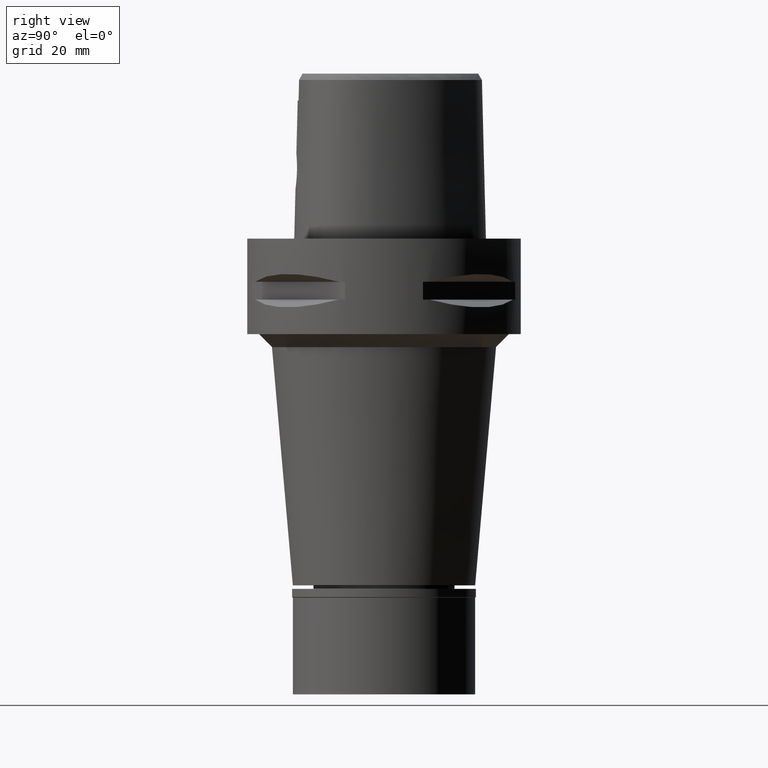
[diagram: clean part render]
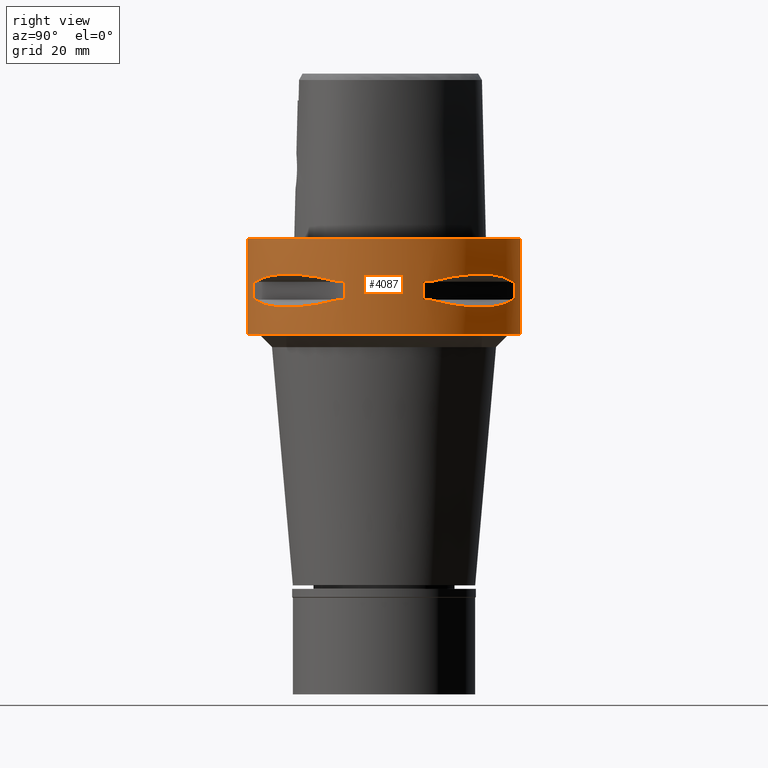
[diagram: same view with one face highlighted and labeled with its STEP entity id]
A machine part, right view. The second image highlights one B-rep face of the part: STEP entity #4087.
In plain terms, the highlighted cylindrical surface (partial cylindrical patch) has radius 31.5 mm, axis along (0, 0, -1).
Its self-contained STEP definition (entity closure, byte-faithful):
#9 = VERTEX_POINT ( 'NONE', #4185 ) ;
#22 = CARTESIAN_POINT ( 'NONE',  ( 27.64634172018161706, 15.11986997310341962, -15.11207862403678170 ) ) ;
#26 = EDGE_CURVE ( 'NONE', #2871, #3929, #4740, .T. ) ;
#48 = AXIS2_PLACEMENT_3D ( 'NONE', #1879, #1940, #3024 ) ;
#67 = CYLINDRICAL_SURFACE ( 'NONE', #1623, 31.50000000000000000 ) ;
#75 = CARTESIAN_POINT ( 'NONE',  ( 14.89252659058207939, 27.86285265926221300, -15.10765629752054195 ) ) ;
#97 = VERTEX_POINT ( 'NONE', #2897 ) ;
#102 = DIRECTION ( 'NONE',  ( 0.0000000000000000000, 0.0000000000000000000, 1.000000000000000000 ) ) ;
#127 = B_SPLINE_CURVE_WITH_KNOTS ( 'NONE', 3,
 ( #3923, #2737, #1602, #22, #2710, #2442, #2383, #1574, #396, #3098, #1655, #505, #417, #3123, #3951, #811, #1976, #4721, #1245, #2059, #3537, #75, #1270, #1629 ),
 .UNSPECIFIED., .F., .F.,
 ( 4, 1, 1, 1, 1, 1, 2, 2, 2, 1, 1, 1, 1, 1, 2, 2, 4 ),
 ( 0.0000000000000000000, 0.1250000000000023870, 0.1875000000000036915, 0.2187500000000045797, 0.2343750000000049960, 0.2421875000000053013, 0.2460937500000055789, 0.2500000000000058842, 0.5000000000000076605, 0.6250000000000083267, 0.6875000000000086597, 0.7187500000000088818, 0.7343750000000086597, 0.7421875000000086597, 0.7460937500000084377, 0.7500000000000083267, 1.000000000000000000 ),
 .UNSPECIFIED. ) ;
#144 = AXIS2_PLACEMENT_3D ( 'NONE', #2317, #2726, #4336 ) ;
#159 = VERTEX_POINT ( 'NONE', #4440 ) ;
#169 = EDGE_LOOP ( 'NONE', ( #642, #2884, #2390, #2526, #717, #1422, #4939, #2422 ) ) ;
#183 = DIRECTION ( 'NONE',  ( 0.0000000000000000000, 0.0000000000000000000, 1.000000000000000000 ) ) ;
#262 = CARTESIAN_POINT ( 'NONE',  ( 27.88214534470568395, 14.84422749199026192, -8.906206096497943037 ) ) ;
#279 = CIRCLE ( 'NONE', #2231, 31.50000000000000000 ) ;
#300 = CARTESIAN_POINT ( 'NONE',  ( 16.86571563436751475, -26.60451452154716989, -15.39949295786035854 ) ) ;
#307 = VERTEX_POINT ( 'NONE', #3991 ) ;
#323 = LINE ( 'NONE', #4529, #3186 ) ;
#340 = DIRECTION ( 'NONE',  ( 0.0000000000000000000, 0.0000000000000000000, -1.000000000000000000 ) ) ;
#390 = ORIENTED_EDGE ( 'NONE', *, *, #1769, .F. ) ;
#396 = CARTESIAN_POINT ( 'NONE',  ( 26.60451452154748253, 16.86571563436660526, -15.39949295786011874 ) ) ;
#417 = CARTESIAN_POINT ( 'NONE',  ( 21.46242677080035932, 23.08532645886616308, -15.83938991065496715 ) ) ;
#420 = EDGE_CURVE ( 'NONE', #1894, #2931, #2311, .T. ) ;
#438 = CARTESIAN_POINT ( 'NONE',  ( 0.0000000000000000000, 1.284348330606000068E-14, 4.875000000000000000 ) ) ;
#480 = CARTESIAN_POINT ( 'NONE',  ( 0.0000000000000000000, 1.284348330606000068E-14, -9.950000000000001066 ) ) ;
#505 = CARTESIAN_POINT ( 'NONE',  ( 23.89673728051777957, 20.65093790438612587, -15.83935804901405042 ) ) ;
#531 = CARTESIAN_POINT ( 'NONE',  ( 8.981198972017999438, 30.19251670572000279, -14.05000000000000071 ) ) ;
#562 = EDGE_LOOP ( 'NONE', ( #2446, #3259, #1326, #2189 ) ) ;
#597 = CARTESIAN_POINT ( 'NONE',  ( 10.44775724750000023, 29.71690375017999841, -9.949999999998999201 ) ) ;
#621 = CARTESIAN_POINT ( 'NONE',  ( 29.71690375017999841, 10.44775724750000023, -9.949999999998999201 ) ) ;
#624 = VECTOR ( 'NONE', #183, 1000.000000000000000 ) ;
#642 = ORIENTED_EDGE ( 'NONE', *, *, #4141, .T. ) ;
#714 = AXIS2_PLACEMENT_3D ( 'NONE', #2815, #2444, #2061 ) ;
#717 = ORIENTED_EDGE ( 'NONE', *, *, #4961, .T. ) ;
#723 = CARTESIAN_POINT ( 'NONE',  ( 0.0000000000000000000, 31.50000000000000000, -22.00000000000000000 ) ) ;
#736 = CARTESIAN_POINT ( 'NONE',  ( 14.84422749199042890, -27.88214534470556671, -8.906206096497941260 ) ) ;
#754 = CARTESIAN_POINT ( 'NONE',  ( 16.70616724746217940, -26.70521063584381949, -15.37546661817795624 ) ) ;
#811 = CARTESIAN_POINT ( 'NONE',  ( 17.76952662673489769, 26.01217882833579154, -15.52665221626253356 ) ) ;
#953 = DIRECTION ( 'NONE',  ( 0.0000000000000000000, 0.0000000000000000000, -1.000000000000000000 ) ) ;
#962 = CARTESIAN_POINT ( 'NONE',  ( 28.92474506844685678, 12.70092055730897762, -9.353547358226721897 ) ) ;
#976 = AXIS2_PLACEMENT_3D ( 'NONE', #480, #102, #1274 ) ;
#997 = DIRECTION ( 'NONE',  ( 0.9433937698468619626, -0.3316748332540863653, 0.0000000000000000000 ) ) ;
#1006 = EDGE_CURVE ( 'NONE', #3689, #307, #4979, .T. ) ;
#1025 = VECTOR ( 'NONE', #953, 1000.000000000000000 ) ;
#1077 = CARTESIAN_POINT ( 'NONE',  ( 26.52527364208627958, -16.98999780422056816, -15.41788098766324744 ) ) ;
#1087 = EDGE_CURVE ( 'NONE', #4122, #4095, #3218, .T. ) ;
#1096 = CARTESIAN_POINT ( 'NONE',  ( 16.89910283486529252, -26.58330558444471947, -15.40446471307232912 ) ) ;
#1120 = CARTESIAN_POINT ( 'NONE',  ( 26.48642424310542509, -17.05047092244215889, -15.42670883407675042 ) ) ;
#1135 = CARTESIAN_POINT ( 'NONE',  ( 8.981198972019999616, 30.19251670572000279, -14.05000000000000071 ) ) ;
#1136 = LINE ( 'NONE', #1896, #1458 ) ;
#1169 = CARTESIAN_POINT ( 'NONE',  ( 18.81455742163210587, -25.37277178168278624, -8.309746333127382201 ) ) ;
#1174 = CIRCLE ( 'NONE', #1258, 31.50000000000000711 ) ;
#1198 = DIRECTION ( 'NONE',  ( 0.0000000000000000000, 0.0000000000000000000, -1.000000000000000000 ) ) ;
#1245 = CARTESIAN_POINT ( 'NONE',  ( 17.05047092244498685, 26.48642424310287780, -15.42670883407686411 ) ) ;
#1258 = AXIS2_PLACEMENT_3D ( 'NONE', #2164, #4843, #997 ) ;
#1270 = CARTESIAN_POINT ( 'NONE',  ( 12.73197616789159525, 28.91382665368562144, -14.65467361754145514 ) ) ;
#1274 = DIRECTION ( 'NONE',  ( 0.2851174276831918153, -0.9584925938322735872, 0.0000000000000000000 ) ) ;
#1326 = ORIENTED_EDGE ( 'NONE', *, *, #2935, .T. ) ;
#1337 = EDGE_CURVE ( 'NONE', #2871, #4569, #2529, .T. ) ;
#1344 = ORIENTED_EDGE ( 'NONE', *, *, #3269, .F. ) ;
#1371 = VECTOR ( 'NONE', #1198, 1000.000000000000000 ) ;
#1376 = B_SPLINE_CURVE_WITH_KNOTS ( 'NONE', 3,
 ( #621, #962, #262, #4903, #2132, #4880, #2946, #2514, #2580, #597 ),
 .UNSPECIFIED., .F., .F.,
 ( 4, 2, 2, 2, 4 ),
 ( 0.0000000000000000000, 0.2500000000000000000, 0.5000000000000000000, 0.7500000000000000000, 1.000000000000000000 ),
 .UNSPECIFIED. ) ;
#1422 = ORIENTED_EDGE ( 'NONE', *, *, #1980, .F. ) ;
#1458 = VECTOR ( 'NONE', #340, 1000.000000000000000 ) ;
#1459 = EDGE_CURVE ( 'NONE', #4635, #97, #4249, .T. ) ;
#1550 = CARTESIAN_POINT ( 'NONE',  ( 26.01217882835178585, -17.76952662671725847, -15.52665221626185676 ) ) ;
#1570 = CARTESIAN_POINT ( 'NONE',  ( 8.981198972017999438, 30.19251670572000279, -9.950000000000001066 ) ) ;
#1574 = CARTESIAN_POINT ( 'NONE',  ( 26.64486562695759275, 16.80193241490600542, -15.38992683735705391 ) ) ;
#1602 = CARTESIAN_POINT ( 'NONE',  ( 28.62019653468597724, 13.25636937904471147, -14.74888225541528186 ) ) ;
#1617 = DIRECTION ( 'NONE',  ( 0.0000000000000000000, 0.0000000000000000000, 1.000000000000000000 ) ) ;
#1623 = AXIS2_PLACEMENT_3D ( 'NONE', #438, #4711, #4310 ) ;
#1627 = EDGE_CURVE ( 'NONE', #307, #159, #4887, .T. ) ;
#1629 = CARTESIAN_POINT ( 'NONE',  ( 10.44775724750000023, 29.71690375017999841, -14.05000000000000071 ) ) ;
#1642 = ORIENTED_EDGE ( 'NONE', *, *, #1459, .T. ) ;
#1655 = CARTESIAN_POINT ( 'NONE',  ( 25.32725744468687168, 18.86897208071480136, -15.69588095933130845 ) ) ;
#1670 = FACE_BOUND ( 'NONE', #4745, .T. ) ;
#1679 = CARTESIAN_POINT ( 'NONE',  ( 29.71690375017999841, 10.44775724750000023, -14.05000000000000071 ) ) ;
#1724 = FACE_OUTER_BOUND ( 'NONE', #562, .T. ) ;
#1751 = ORIENTED_EDGE ( 'NONE', *, *, #1006, .T. ) ;
#1769 = EDGE_CURVE ( 'NONE', #4635, #3319, #4328, .T. ) ;
#1807 = CARTESIAN_POINT ( 'NONE',  ( 0.0000000000000000000, 31.50000000000000000, 0.0000000000000000000 ) ) ;
#1832 = CARTESIAN_POINT ( 'NONE',  ( 16.03138450079733346, -27.11872488588761954, -15.26880420108033398 ) ) ;
#1879 = CARTESIAN_POINT ( 'NONE',  ( 0.0000000000000000000, 1.284348330606000068E-14, -22.00000000000000000 ) ) ;
#1882 = DIRECTION ( 'NONE',  ( 0.0000000000000000000, 0.0000000000000000000, -1.000000000000000000 ) ) ;
#1884 = CARTESIAN_POINT ( 'NONE',  ( 13.25636937907020929, -28.62019653467701730, -14.74888225542203379 ) ) ;
#1894 = VERTEX_POINT ( 'NONE', #1807 ) ;
#1896 = CARTESIAN_POINT ( 'NONE',  ( 0.0000000000000000000, -31.50000000000000000, 0.0000000000000000000 ) ) ;
#1921 = EDGE_CURVE ( 'NONE', #3274, #3614, #3512, .T. ) ;
#1940 = DIRECTION ( 'NONE',  ( 0.0000000000000000000, 0.0000000000000000000, 1.000000000000000000 ) ) ;
#1976 = CARTESIAN_POINT ( 'NONE',  ( 17.35163608580574035, 26.29071741523071282, -15.46976201925525274 ) ) ;
#1980 = EDGE_CURVE ( 'NONE', #3274, #2930, #4461, .T. ) ;
#1983 = CARTESIAN_POINT ( 'NONE',  ( 30.19251670572000279, -8.981198972017999438, -14.05000000000000071 ) ) ;
#2033 = AXIS2_PLACEMENT_3D ( 'NONE', #4365, #1617, #2486 ) ;
#2059 = CARTESIAN_POINT ( 'NONE',  ( 16.98999780422198569, 26.52527364208497573, -15.41788098766329540 ) ) ;
#2061 = DIRECTION ( 'NONE',  ( 0.3316748332540863653, -0.9433937698468619626, 0.0000000000000000000 ) ) ;
#2111 = CARTESIAN_POINT ( 'NONE',  ( 10.44775724750000023, 29.71690375017999841, -9.949999999998999201 ) ) ;
#2132 = CARTESIAN_POINT ( 'NONE',  ( 23.90617837147169666, 20.64154884328081252, -8.160627831309673397 ) ) ;
#2152 = EDGE_CURVE ( 'NONE', #4122, #97, #3330, .T. ) ;
#2164 = CARTESIAN_POINT ( 'NONE',  ( 0.0000000000000000000, 1.284348330606000068E-14, -9.950000000000001066 ) ) ;
#2169 = DIRECTION ( 'NONE',  ( 0.9584925938322735872, 0.2851174276831918153, 0.0000000000000000000 ) ) ;
#2189 = ORIENTED_EDGE ( 'NONE', *, *, #420, .F. ) ;
#2204 = CARTESIAN_POINT ( 'NONE',  ( 30.19251670572000279, -8.981198972019999616, -14.05000000000000071 ) ) ;
#2215 = CARTESIAN_POINT ( 'NONE',  ( 20.65093790434436372, -23.89673728056386182, -15.83935804901581079 ) ) ;
#2231 = AXIS2_PLACEMENT_3D ( 'NONE', #4179, #3847, #3420 ) ;
#2265 = CARTESIAN_POINT ( 'NONE',  ( 24.23018836746479110, -20.18579225685548195, -15.78559396979238194 ) ) ;
#2284 = CARTESIAN_POINT ( 'NONE',  ( 29.71690375017999841, -10.44775724750000023, -14.05000000000000071 ) ) ;
#2304 = CARTESIAN_POINT ( 'NONE',  ( 16.80193241490779599, -26.64486562695696037, -15.38992683735752642 ) ) ;
#2309 = AXIS2_PLACEMENT_3D ( 'NONE', #4406, #3323, #2169 ) ;
#2311 = LINE ( 'NONE', #3543, #1371 ) ;
#2317 = CARTESIAN_POINT ( 'NONE',  ( 0.0000000000000000000, 1.284348330606000068E-14, -14.05000000000000071 ) ) ;
#2334 = DIRECTION ( 'NONE',  ( 0.0000000000000000000, 0.0000000000000000000, 1.000000000000000000 ) ) ;
#2341 = DIRECTION ( 'NONE',  ( 0.9433937698468619626, 0.3316748332540863653, 0.0000000000000000000 ) ) ;
#2352 = EDGE_CURVE ( 'NONE', #2395, #3929, #127, .T. ) ;
#2383 = CARTESIAN_POINT ( 'NONE',  ( 26.70521063584491017, 16.70616724745910275, -15.37546661817714444 ) ) ;
#2390 = ORIENTED_EDGE ( 'NONE', *, *, #26, .T. ) ;
#2395 = VERTEX_POINT ( 'NONE', #1679 ) ;
#2422 = ORIENTED_EDGE ( 'NONE', *, *, #4399, .T. ) ;
#2442 = CARTESIAN_POINT ( 'NONE',  ( 26.84474411198702981, 16.48208282229089505, -15.34094883778014129 ) ) ;
#2444 = DIRECTION ( 'NONE',  ( 0.0000000000000000000, 0.0000000000000000000, -1.000000000000000000 ) ) ;
#2446 = ORIENTED_EDGE ( 'NONE', *, *, #3170, .T. ) ;
#2486 = DIRECTION ( 'NONE',  ( 0.3316748332540863653, 0.9433937698468619626, 0.0000000000000000000 ) ) ;
#2514 = CARTESIAN_POINT ( 'NONE',  ( 14.84430321578704337, 27.88210502983996619, -8.906184731967030643 ) ) ;
#2526 = ORIENTED_EDGE ( 'NONE', *, *, #2352, .F. ) ;
#2529 = LINE ( 'NONE', #531, #624 ) ;
#2545 = CARTESIAN_POINT ( 'NONE',  ( 30.19251670572000279, -8.981198972017999438, -9.950000000000001066 ) ) ;
#2549 = VERTEX_POINT ( 'NONE', #2111 ) ;
#2580 = CARTESIAN_POINT ( 'NONE',  ( 12.70097436183467110, 28.92472615205410236, -9.353533115206117188 ) ) ;
#2595 = CARTESIAN_POINT ( 'NONE',  ( 10.44775724750000023, -29.71690375017999841, -14.05000000000000071 ) ) ;
#2615 = CARTESIAN_POINT ( 'NONE',  ( 8.981198972019999616, -30.19251670572000279, -9.950000000000001066 ) ) ;
#2620 = CARTESIAN_POINT ( 'NONE',  ( 26.29071741523927841, -17.35163608579630079, -15.46976201925489569 ) ) ;
#2646 = CARTESIAN_POINT ( 'NONE',  ( 23.90617837147170377, -20.64154884328077699, -8.160613588465007950 ) ) ;
#2664 = CARTESIAN_POINT ( 'NONE',  ( 25.43927894892507169, -18.59229662064666755, -15.62866126334561123 ) ) ;
#2678 = CARTESIAN_POINT ( 'NONE',  ( 0.0000000000000000000, 1.284348330606000068E-14, -14.05000000000000071 ) ) ;
#2710 = CARTESIAN_POINT ( 'NONE',  ( 27.11872488589154528, 16.03138450078616728, -15.26880420107737990 ) ) ;
#2717 = CARTESIAN_POINT ( 'NONE',  ( 27.88210502983992711, -14.84430321578705403, -8.906184731967030643 ) ) ;
#2726 = DIRECTION ( 'NONE',  ( 0.0000000000000000000, 0.0000000000000000000, -1.000000000000000000 ) ) ;
#2737 = CARTESIAN_POINT ( 'NONE',  ( 29.31542262584548553, 11.58970337494890224, -14.35229357167063213 ) ) ;
#2810 = AXIS2_PLACEMENT_3D ( 'NONE', #3723, #4103, #3299 ) ;
#2815 = CARTESIAN_POINT ( 'NONE',  ( 0.0000000000000000000, 1.284348330606000068E-14, -14.05000000000000071 ) ) ;
#2871 = VERTEX_POINT ( 'NONE', #1135 ) ;
#2884 = ORIENTED_EDGE ( 'NONE', *, *, #1337, .F. ) ;
#2892 = CARTESIAN_POINT ( 'NONE',  ( 30.19251670572000279, 8.981198972017999438, -9.950000000000001066 ) ) ;
#2897 = CARTESIAN_POINT ( 'NONE',  ( 29.71690375017999841, -10.44775724750000023, -14.05000000000000071 ) ) ;
#2930 = VERTEX_POINT ( 'NONE', #4980 ) ;
#2931 = VERTEX_POINT ( 'NONE', #723 ) ;
#2935 = EDGE_CURVE ( 'NONE', #4408, #2931, #3426, .T. ) ;
#2946 = CARTESIAN_POINT ( 'NONE',  ( 18.81462633032052167, 25.37272068398780078, -8.309724968596480466 ) ) ;
#2986 = CARTESIAN_POINT ( 'NONE',  ( 16.48208282229687427, -26.84474411198493371, -15.34094883778172402 ) ) ;
#2992 = AXIS2_PLACEMENT_3D ( 'NONE', #2678, #4254, #2341 ) ;
#3024 = DIRECTION ( 'NONE',  ( 0.0000000000000000000, -1.000000000000000000, 0.0000000000000000000 ) ) ;
#3098 = CARTESIAN_POINT ( 'NONE',  ( 26.58330558444425762, 16.89910283486581832, -15.40446471307235754 ) ) ;
#3123 = CARTESIAN_POINT ( 'NONE',  ( 20.18579225689579104, 24.23018836742823723, -15.78559396979392560 ) ) ;
#3170 = EDGE_CURVE ( 'NONE', #1894, #9, #279, .T. ) ;
#3186 = VECTOR ( 'NONE', #1882, 1000.000000000000000 ) ;
#3196 = FACE_BOUND ( 'NONE', #169, .T. ) ;
#3218 = CIRCLE ( 'NONE', #714, 31.50000000000000711 ) ;
#3225 = CARTESIAN_POINT ( 'NONE',  ( 8.981198972017999438, -30.19251670572000279, -14.05000000000000071 ) ) ;
#3259 = ORIENTED_EDGE ( 'NONE', *, *, #3894, .T. ) ;
#3269 = EDGE_CURVE ( 'NONE', #3689, #4095, #323, .T. ) ;
#3274 = VERTEX_POINT ( 'NONE', #3412 ) ;
#3299 = DIRECTION ( 'NONE',  ( 0.9584925938322735872, -0.2851174276831918153, 0.0000000000000000000 ) ) ;
#3319 = VERTEX_POINT ( 'NONE', #2545 ) ;
#3323 = DIRECTION ( 'NONE',  ( 0.0000000000000000000, 0.0000000000000000000, 1.000000000000000000 ) ) ;
#3324 = CIRCLE ( 'NONE', #2992, 31.50000000000000711 ) ;
#3330 = B_SPLINE_CURVE_WITH_KNOTS ( 'NONE', 3,
 ( #2595, #3840, #1884, #4892, #1832, #2986, #754, #2304, #300, #1096, #3457, #2215, #4531, #2265, #2664, #1550, #2620, #4578, #1120, #1077, #3767, #4195, #4503, #2284 ),
 .UNSPECIFIED., .F., .F.,
 ( 4, 1, 1, 1, 1, 1, 2, 2, 2, 1, 1, 1, 1, 1, 2, 2, 4 ),
 ( 0.0000000000000000000, 0.1250000000000063005, 0.1875000000000094369, 0.2187500000000109357, 0.2343750000000116851, 0.2421875000000119627, 0.2460937500000119627, 0.2500000000000119349, 0.5000000000000025535, 0.6249999999999978906, 0.6874999999999955591, 0.7187499999999945599, 0.7343749999999941158, 0.7421874999999936717, 0.7460937499999935607, 0.7499999999999933387, 1.000000000000000000 ),
 .UNSPECIFIED. ) ;
#3412 = CARTESIAN_POINT ( 'NONE',  ( 30.19251670572000279, 8.981198972019999616, -9.950000000000001066 ) ) ;
#3420 = DIRECTION ( 'NONE',  ( 0.0000000000000000000, 1.000000000000000000, 0.0000000000000000000 ) ) ;
#3422 = ORIENTED_EDGE ( 'NONE', *, *, #2152, .F. ) ;
#3426 = CIRCLE ( 'NONE', #48, 31.50000000000000000 ) ;
#3457 = CARTESIAN_POINT ( 'NONE',  ( 18.86897208074864096, -25.32725744465734152, -15.69588095933306704 ) ) ;
#3466 = CIRCLE ( 'NONE', #2033, 31.50000000000000711 ) ;
#3512 = CIRCLE ( 'NONE', #2309, 31.50000000000001776 ) ;
#3537 = CARTESIAN_POINT ( 'NONE',  ( 16.96123479564913694, 26.54368690921650398, -15.41365572341313239 ) ) ;
#3543 = CARTESIAN_POINT ( 'NONE',  ( 0.0000000000000000000, 31.50000000000000000, 0.0000000000000000000 ) ) ;
#3602 = VECTOR ( 'NONE', #2334, 1000.000000000000000 ) ;
#3614 = VERTEX_POINT ( 'NONE', #3759 ) ;
#3619 = EDGE_CURVE ( 'NONE', #159, #3319, #1174, .T. ) ;
#3689 = VERTEX_POINT ( 'NONE', #2615 ) ;
#3723 = CARTESIAN_POINT ( 'NONE',  ( 0.0000000000000000000, 1.284348330606000068E-14, -14.05000000000000071 ) ) ;
#3759 = CARTESIAN_POINT ( 'NONE',  ( 29.71690375017999841, 10.44775724750000023, -9.949999999998999201 ) ) ;
#3767 = CARTESIAN_POINT ( 'NONE',  ( 26.54368690921627305, -16.96123479564985459, -15.41365572341332602 ) ) ;
#3771 = CARTESIAN_POINT ( 'NONE',  ( 10.44775724750000023, -29.71690375017999841, -9.949999999998999201 ) ) ;
#3797 = CARTESIAN_POINT ( 'NONE',  ( 29.71690375017999841, -10.44775724750000023, -9.949999999998999201 ) ) ;
#3810 = CARTESIAN_POINT ( 'NONE',  ( 10.44775724750000023, 29.71690375017999841, -14.05000000000000071 ) ) ;
#3840 = CARTESIAN_POINT ( 'NONE',  ( 11.58970337496347902, -29.31542262584038028, -14.35229357167449216 ) ) ;
#3847 = DIRECTION ( 'NONE',  ( 0.0000000000000000000, 0.0000000000000000000, -1.000000000000000000 ) ) ;
#3894 = EDGE_CURVE ( 'NONE', #9, #4408, #1136, .T. ) ;
#3923 = CARTESIAN_POINT ( 'NONE',  ( 29.71690375017999841, 10.44775724750000023, -14.05000000000000071 ) ) ;
#3929 = VERTEX_POINT ( 'NONE', #3810 ) ;
#3951 = CARTESIAN_POINT ( 'NONE',  ( 18.59229662067690114, 25.43927894889767316, -15.62866126334676942 ) ) ;
#3991 = CARTESIAN_POINT ( 'NONE',  ( 10.44775724750000023, -29.71690375017999841, -9.949999999998999201 ) ) ;
#4018 = CARTESIAN_POINT ( 'NONE',  ( 10.44775724750000023, -29.71690375017999841, -14.05000000000000071 ) ) ;
#4087 = ADVANCED_FACE ( 'NONE', ( #1724, #1670, #3196 ), #67, .T. ) ;
#4095 = VERTEX_POINT ( 'NONE', #3225 ) ;
#4103 = DIRECTION ( 'NONE',  ( 0.0000000000000000000, 0.0000000000000000000, -1.000000000000000000 ) ) ;
#4122 = VERTEX_POINT ( 'NONE', #4018 ) ;
#4141 = EDGE_CURVE ( 'NONE', #2549, #4569, #3466, .T. ) ;
#4176 = CARTESIAN_POINT ( 'NONE',  ( 25.37272068398773683, -18.81462633032057852, -8.309724968596480466 ) ) ;
#4179 = CARTESIAN_POINT ( 'NONE',  ( 0.0000000000000000000, 1.284348330606000068E-14, 0.0000000000000000000 ) ) ;
#4185 = CARTESIAN_POINT ( 'NONE',  ( 0.0000000000000000000, -31.50000000000000000, 0.0000000000000000000 ) ) ;
#4195 = CARTESIAN_POINT ( 'NONE',  ( 27.86285265927817889, -14.89252659053665795, -15.10765629750851602 ) ) ;
#4201 = CARTESIAN_POINT ( 'NONE',  ( 12.70092055730914815, -28.92474506844677151, -9.353547358226721897 ) ) ;
#4249 = CIRCLE ( 'NONE', #2810, 31.50000000000001776 ) ;
#4254 = DIRECTION ( 'NONE',  ( 0.0000000000000000000, 0.0000000000000000000, -1.000000000000000000 ) ) ;
#4310 = DIRECTION ( 'NONE',  ( 0.0000000000000000000, -1.000000000000000000, 0.0000000000000000000 ) ) ;
#4328 = LINE ( 'NONE', #1983, #3602 ) ;
#4336 = DIRECTION ( 'NONE',  ( 0.2851174276831918153, 0.9584925938322735872, 0.0000000000000000000 ) ) ;
#4365 = CARTESIAN_POINT ( 'NONE',  ( 0.0000000000000000000, 1.284348330606000068E-14, -9.950000000000001066 ) ) ;
#4371 = ORIENTED_EDGE ( 'NONE', *, *, #1087, .T. ) ;
#4399 = EDGE_CURVE ( 'NONE', #3614, #2549, #1376, .T. ) ;
#4406 = CARTESIAN_POINT ( 'NONE',  ( 0.0000000000000000000, 1.284348330606000068E-14, -9.950000000000001066 ) ) ;
#4408 = VERTEX_POINT ( 'NONE', #4857 ) ;
#4440 = CARTESIAN_POINT ( 'NONE',  ( 29.71690375017999841, -10.44775724750000023, -9.949999999998999201 ) ) ;
#4461 = LINE ( 'NONE', #2892, #1025 ) ;
#4503 = CARTESIAN_POINT ( 'NONE',  ( 28.91382665370159089, -12.73197616784618269, -14.65467361752943098 ) ) ;
#4529 = CARTESIAN_POINT ( 'NONE',  ( 8.981198972017999438, -30.19251670572000279, -9.950000000000001066 ) ) ;
#4531 = CARTESIAN_POINT ( 'NONE',  ( 23.08532645888704238, -21.46242677077732353, -15.83938991065408963 ) ) ;
#4569 = VERTEX_POINT ( 'NONE', #1570 ) ;
#4578 = CARTESIAN_POINT ( 'NONE',  ( 26.42800887047654967, -17.14106442934675911, -15.43984550238513620 ) ) ;
#4608 = CARTESIAN_POINT ( 'NONE',  ( 28.92472615205410591, -12.70097436183464978, -9.353533115206117188 ) ) ;
#4635 = VERTEX_POINT ( 'NONE', #2204 ) ;
#4672 = ORIENTED_EDGE ( 'NONE', *, *, #3619, .T. ) ;
#4711 = DIRECTION ( 'NONE',  ( 0.0000000000000000000, 0.0000000000000000000, -1.000000000000000000 ) ) ;
#4721 = CARTESIAN_POINT ( 'NONE',  ( 17.14106442935163699, 26.42800887047211944, -15.43984550238531916 ) ) ;
#4740 = CIRCLE ( 'NONE', #144, 31.50000000000001776 ) ;
#4745 = EDGE_LOOP ( 'NONE', ( #4672, #390, #1642, #3422, #4371, #1344, #1751, #4755 ) ) ;
#4755 = ORIENTED_EDGE ( 'NONE', *, *, #1627, .T. ) ;
#4843 = DIRECTION ( 'NONE',  ( 0.0000000000000000000, 0.0000000000000000000, 1.000000000000000000 ) ) ;
#4857 = CARTESIAN_POINT ( 'NONE',  ( 0.0000000000000000000, -31.50000000000000000, -22.00000000000000000 ) ) ;
#4880 = CARTESIAN_POINT ( 'NONE',  ( 20.64154884328073081, 23.90617837147177482, -8.160613588465007950 ) ) ;
#4887 = B_SPLINE_CURVE_WITH_KNOTS ( 'NONE', 3,
 ( #3771, #4201, #736, #1169, #4923, #2646, #4176, #2717, #4608, #3797 ),
 .UNSPECIFIED., .F., .F.,
 ( 4, 2, 2, 2, 4 ),
 ( 0.0000000000000000000, 0.2499999999999998335, 0.4999999999999998890, 0.7499999999999998890, 1.000000000000000000 ),
 .UNSPECIFIED. ) ;
#4892 = CARTESIAN_POINT ( 'NONE',  ( 15.11986997312254033, -27.64634172017490954, -15.11207862404184787 ) ) ;
#4903 = CARTESIAN_POINT ( 'NONE',  ( 25.37277178168286440, 18.81455742163205258, -8.309746333127383977 ) ) ;
#4923 = CARTESIAN_POINT ( 'NONE',  ( 20.64154884328072370, -23.90617837147174285, -8.160627831309671620 ) ) ;
#4939 = ORIENTED_EDGE ( 'NONE', *, *, #1921, .T. ) ;
#4961 = EDGE_CURVE ( 'NONE', #2395, #2930, #3324, .T. ) ;
#4979 = CIRCLE ( 'NONE', #976, 31.50000000000001776 ) ;
#4980 = CARTESIAN_POINT ( 'NONE',  ( 30.19251670572000279, 8.981198972017999438, -14.05000000000000071 ) ) ;